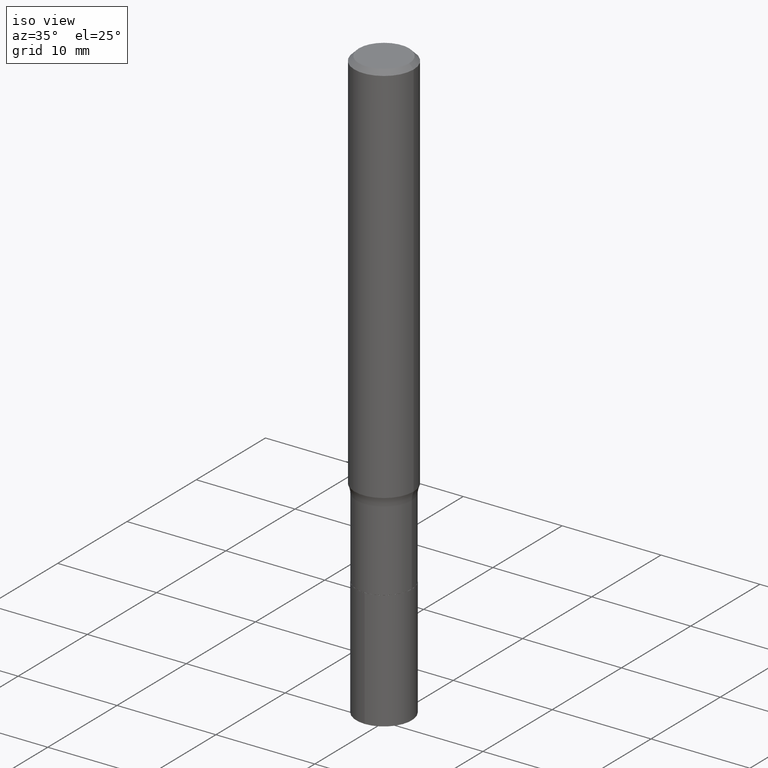
[diagram: clean part render]
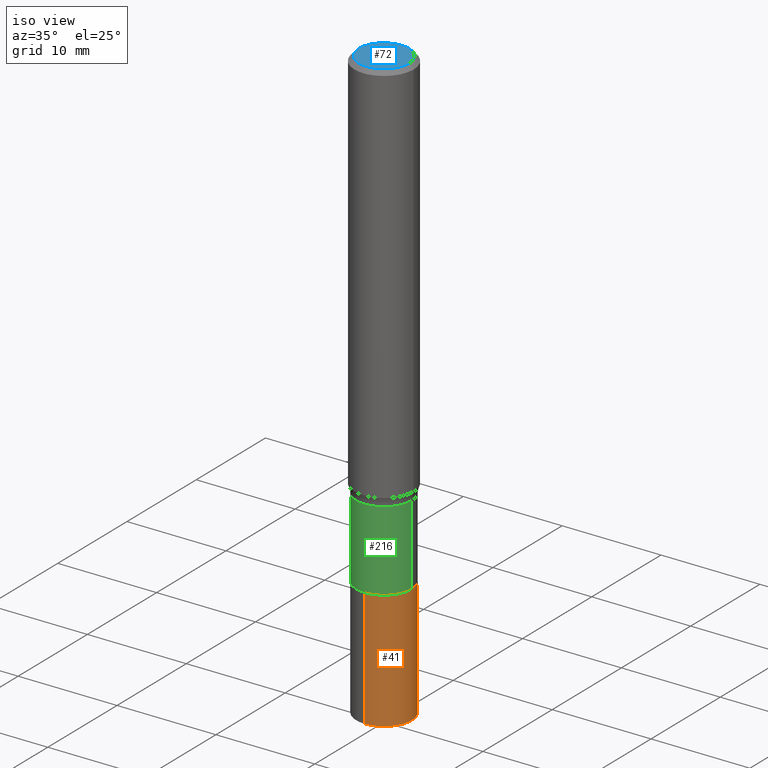
[diagram: same view with three faces highlighted in distinct colors, each labeled with its STEP entity id]
A machine part, iso view with three faces highlighted in distinct colors.
Their STEP definitions:

[orange] entity #41 — the highlighted cylindrical surface (edge-blend (fillet) strip) has radius 2.8003 mm, axis along (-0, 0, 1).
#9 = EDGE_CURVE ( 'NONE', #276, #372, #254, .T. ) ;
#11 = LINE ( 'NONE', #342, #268 ) ;
#33 = DIRECTION ( 'NONE',  ( -6.982962677686266711E-15, -1.000000000000000000, 2.477866660919966807E-15 ) ) ;
#41 = ADVANCED_FACE ( 'NONE', ( #179 ), #360, .T. ) ;
#57 = DIRECTION ( 'NONE',  ( -2.478945423530014988E-29, 3.443540917434548382E-15, 1.000000000000000000 ) ) ;
#73 = DIRECTION ( 'NONE',  ( -6.982962677686266711E-15, -1.000000000000000000, 2.477866660919966807E-15 ) ) ;
#93 = CARTESIAN_POINT ( 'NONE',  ( 7.833733661755681459E-16, 0.1102499999999933950, -1.890200000000000546 ) ) ;
#107 = ORIENTED_EDGE ( 'NONE', *, *, #305, .T. ) ;
#165 = DIRECTION ( 'NONE',  ( -2.478945423530014988E-29, 3.443540917434547988E-15, 1.000000000000000000 ) ) ;
#167 = CARTESIAN_POINT ( 'NONE',  ( 7.833733661755623280E-16, 0.1102499999999917574, -2.362200000000000966 ) ) ;
#168 = VERTEX_POINT ( 'NONE', #370 ) ;
#175 = VECTOR ( 'NONE', #296, 39.37007874015748143 ) ;
#179 = FACE_OUTER_BOUND ( 'NONE', #361, .T. ) ;
#185 = EDGE_CURVE ( 'NONE', #417, #372, #192, .T. ) ;
#192 = LINE ( 'NONE', #400, #175 ) ;
#212 = DIRECTION ( 'NONE',  ( -2.478945423530014988E-29, 3.443540917434548382E-15, 1.000000000000000000 ) ) ;
#219 = ORIENTED_EDGE ( 'NONE', *, *, #185, .T. ) ;
#220 = ORIENTED_EDGE ( 'NONE', *, *, #9, .F. ) ;
#230 = AXIS2_PLACEMENT_3D ( 'NONE', #277, #57, #307 ) ;
#254 = CIRCLE ( 'NONE', #308, 0.1102500000000000008 ) ;
#268 = VECTOR ( 'NONE', #165, 39.37007874015748143 ) ;
#276 = VERTEX_POINT ( 'NONE', #337 ) ;
#277 = CARTESIAN_POINT ( 'NONE',  ( 5.792487377357313463E-29, -8.224949339710422363E-15, -2.362200000000000522 ) ) ;
#283 = DIRECTION ( 'NONE',  ( -2.478945423530014988E-29, 3.443540917434548382E-15, 1.000000000000000000 ) ) ;
#287 = CARTESIAN_POINT ( 'NONE',  ( 4.622425137451146006E-29, -6.599598026681314782E-15, -1.890200000000000324 ) ) ;
#296 = DIRECTION ( 'NONE',  ( -2.478945423530014988E-29, 3.443540917434547988E-15, 1.000000000000000000 ) ) ;
#298 = ORIENTED_EDGE ( 'NONE', *, *, #380, .F. ) ;
#305 = EDGE_CURVE ( 'NONE', #168, #417, #430, .T. ) ;
#307 = DIRECTION ( 'NONE',  ( -6.982962677686266711E-15, -1.000000000000000000, 2.477866660919966807E-15 ) ) ;
#308 = AXIS2_PLACEMENT_3D ( 'NONE', #287, #212, #73 ) ;
#337 = CARTESIAN_POINT ( 'NONE',  ( -7.698716352148647328E-16, -0.1102500000000066066, -1.890199999999999880 ) ) ;
#342 = CARTESIAN_POINT ( 'NONE',  ( -7.698716352148647328E-16, -0.1102500000000066066, -1.890199999999999880 ) ) ;
#360 = CYLINDRICAL_SURFACE ( 'NONE', #421, 0.1102500000000000008 ) ;
#361 = EDGE_LOOP ( 'NONE', ( #107, #219, #220, #298 ) ) ;
#370 = CARTESIAN_POINT ( 'NONE',  ( -7.698716352148528999E-16, -0.1102500000000082164, -2.362200000000000077 ) ) ;
#372 = VERTEX_POINT ( 'NONE', #93 ) ;
#380 = EDGE_CURVE ( 'NONE', #168, #276, #11, .T. ) ;
#400 = CARTESIAN_POINT ( 'NONE',  ( 7.833733661755566088E-16, 0.1102499999999933950, -1.890200000000000546 ) ) ;
#417 = VERTEX_POINT ( 'NONE', #167 ) ;
#421 = AXIS2_PLACEMENT_3D ( 'NONE', #458, #283, #33 ) ;
#430 = CIRCLE ( 'NONE', #230, 0.1102499999999999869 ) ;
#458 = CARTESIAN_POINT ( 'NONE',  ( 4.622425137451146006E-29, -6.599598026681314782E-15, -1.890200000000000324 ) ) ;

[blue] entity #72 — the highlighted planar face has unit normal (0, -0, -1).
#4 = DIRECTION ( 'NONE',  ( 1.000000000000000000, -6.982962677686266711E-15, 4.875668750515089058E-29 ) ) ;
#20 = DIRECTION ( 'NONE',  ( -2.445468806185136597E-29, 3.491481338843145583E-15, 1.000000000000000000 ) ) ;
#30 = AXIS2_PLACEMENT_3D ( 'NONE', #178, #465, #368 ) ;
#46 = AXIS2_PLACEMENT_3D ( 'NONE', #365, #293, #4 ) ;
#72 = ADVANCED_FACE ( 'NONE', ( #464 ), #109, .F. ) ;
#74 = CIRCLE ( 'NONE', #412, 0.1003849999999999465 ) ;
#80 = CARTESIAN_POINT ( 'NONE',  ( 0.1003849999999999465, -7.803837484803597373E-16, -3.278471329826883745E-17 ) ) ;
#109 = PLANE ( 'NONE',  #30 ) ;
#176 = VERTEX_POINT ( 'NONE', #80 ) ;
#178 = CARTESIAN_POINT ( 'NONE',  ( 4.008699684532606202E-46, -5.723360734012321624E-32, -1.639235664913700718E-17 ) ) ;
#181 = CIRCLE ( 'NONE', #46, 0.1003849999999999465 ) ;
#183 = EDGE_CURVE ( 'NONE', #176, #377, #181, .T. ) ;
#193 = DIRECTION ( 'NONE',  ( 1.000000000000000000, -6.982962677686266711E-15, 4.875668750515089058E-29 ) ) ;
#205 = CARTESIAN_POINT ( 'NONE',  ( 8.017399369065212404E-46, -1.144672146802464325E-31, -3.278471329827401435E-17 ) ) ;
#288 = ORIENTED_EDGE ( 'NONE', *, *, #183, .T. ) ;
#293 = DIRECTION ( 'NONE',  ( -2.445468806185136597E-29, 3.491481338843145583E-15, 1.000000000000000000 ) ) ;
#365 = CARTESIAN_POINT ( 'NONE',  ( 8.017399369065212404E-46, -1.144672146802464325E-31, -3.278471329827401435E-17 ) ) ;
#368 = DIRECTION ( 'NONE',  ( -1.000000000000000000, 6.982962677686265922E-15, -4.876176775795935793E-29 ) ) ;
#377 = VERTEX_POINT ( 'NONE', #413 ) ;
#401 = EDGE_CURVE ( 'NONE', #377, #176, #74, .T. ) ;
#409 = EDGE_LOOP ( 'NONE', ( #445, #288 ) ) ;
#412 = AXIS2_PLACEMENT_3D ( 'NONE', #205, #20, #193 ) ;
#413 = CARTESIAN_POINT ( 'NONE',  ( -0.1003849999999999465, 7.319105043583383731E-16, -3.278471329827902485E-17 ) ) ;
#445 = ORIENTED_EDGE ( 'NONE', *, *, #401, .T. ) ;
#464 = FACE_OUTER_BOUND ( 'NONE', #409, .T. ) ;
#465 = DIRECTION ( 'NONE',  ( 2.438088387897960049E-29, -3.491481338843145188E-15, -1.000000000000000000 ) ) ;

[green] entity #216 — the highlighted cylindrical surface (edge-blend (fillet) strip) has radius 2.8003 mm, axis along (-0, 0, 1).
#1 = DIRECTION ( 'NONE',  ( -2.445468806185136877E-29, 3.491481338843145188E-15, 1.000000000000000000 ) ) ;
#2 = CARTESIAN_POINT ( 'NONE',  ( 4.621202403048053204E-29, -6.597852286011893278E-15, -1.889700000000000379 ) ) ;
#7 = EDGE_CURVE ( 'NONE', #340, #61, #364, .T. ) ;
#44 = VECTOR ( 'NONE', #128, 39.37007874015748143 ) ;
#48 = LINE ( 'NONE', #231, #44 ) ;
#56 = VECTOR ( 'NONE', #1, 39.37007874015748143 ) ;
#61 = VERTEX_POINT ( 'NONE', #284 ) ;
#78 = FACE_OUTER_BOUND ( 'NONE', #303, .T. ) ;
#82 = DIRECTION ( 'NONE',  ( -2.445468806185136597E-29, 3.491481338843145583E-15, 1.000000000000000000 ) ) ;
#90 = EDGE_CURVE ( 'NONE', #346, #396, #359, .T. ) ;
#128 = DIRECTION ( 'NONE',  ( -2.445468806185136877E-29, 3.491481338843145188E-15, 1.000000000000000000 ) ) ;
#129 = CARTESIAN_POINT ( 'NONE',  ( -0.1102499999999999869, -5.258285942558669989E-15, -1.889700000000000379 ) ) ;
#153 = DIRECTION ( 'NONE',  ( -2.445468806185136597E-29, 3.491481338843145583E-15, 1.000000000000000000 ) ) ;
#166 = ORIENTED_EDGE ( 'NONE', *, *, #7, .F. ) ;
#216 = ADVANCED_FACE ( 'NONE', ( #78 ), #404, .T. ) ;
#231 = CARTESIAN_POINT ( 'NONE',  ( 0.1102499999999999730, -7.698716352149106840E-16, 5.375984895315018203E-30 ) ) ;
#239 = ORIENTED_EDGE ( 'NONE', *, *, #447, .T. ) ;
#264 = EDGE_CURVE ( 'NONE', #346, #340, #291, .T. ) ;
#271 = ORIENTED_EDGE ( 'NONE', *, *, #90, .T. ) ;
#284 = CARTESIAN_POINT ( 'NONE',  ( 0.1102499999999999730, -6.255337966671376923E-15, -1.571100000000000163 ) ) ;
#291 = LINE ( 'NONE', #325, #56 ) ;
#295 = AXIS2_PLACEMENT_3D ( 'NONE', #2, #153, #432 ) ;
#302 = CARTESIAN_POINT ( 'NONE',  ( 0.1102499999999999869, -7.367723921226805540E-15, -1.889700000000000379 ) ) ;
#303 = EDGE_LOOP ( 'NONE', ( #453, #271, #239, #166 ) ) ;
#317 = DIRECTION ( 'NONE',  ( 1.000000000000000000, -6.982962677686261977E-15, 0.000000000000000000 ) ) ;
#322 = CARTESIAN_POINT ( 'NONE',  ( 3.842076041397468418E-29, -5.485466331456466239E-15, -1.571100000000000163 ) ) ;
#324 = AXIS2_PLACEMENT_3D ( 'NONE', #322, #422, #317 ) ;
#325 = CARTESIAN_POINT ( 'NONE',  ( -0.1102499999999999730, 7.833733661755102632E-16, -5.423125937006032068E-30 ) ) ;
#329 = AXIS2_PLACEMENT_3D ( 'NONE', #402, #82, #436 ) ;
#340 = VERTEX_POINT ( 'NONE', #444 ) ;
#346 = VERTEX_POINT ( 'NONE', #129 ) ;
#359 = CIRCLE ( 'NONE', #295, 0.1102499999999999869 ) ;
#364 = CIRCLE ( 'NONE', #324, 0.1102499999999999730 ) ;
#396 = VERTEX_POINT ( 'NONE', #302 ) ;
#402 = CARTESIAN_POINT ( 'NONE',  ( 0.000000000000000000, 0.000000000000000000, 0.000000000000000000 ) ) ;
#404 = CYLINDRICAL_SURFACE ( 'NONE', #329, 0.1102499999999999730 ) ;
#422 = DIRECTION ( 'NONE',  ( -2.445468806185136597E-29, 3.491481338843145583E-15, 1.000000000000000000 ) ) ;
#432 = DIRECTION ( 'NONE',  ( 1.000000000000000000, -6.982962677686269866E-15, 0.000000000000000000 ) ) ;
#436 = DIRECTION ( 'NONE',  ( 1.000000000000000000, -6.982962677686266711E-15, 4.876176775795935793E-29 ) ) ;
#444 = CARTESIAN_POINT ( 'NONE',  ( -0.1102499999999999730, -5.258285942558669989E-15, -1.571100000000000163 ) ) ;
#447 = EDGE_CURVE ( 'NONE', #396, #61, #48, .T. ) ;
#453 = ORIENTED_EDGE ( 'NONE', *, *, #264, .F. ) ;